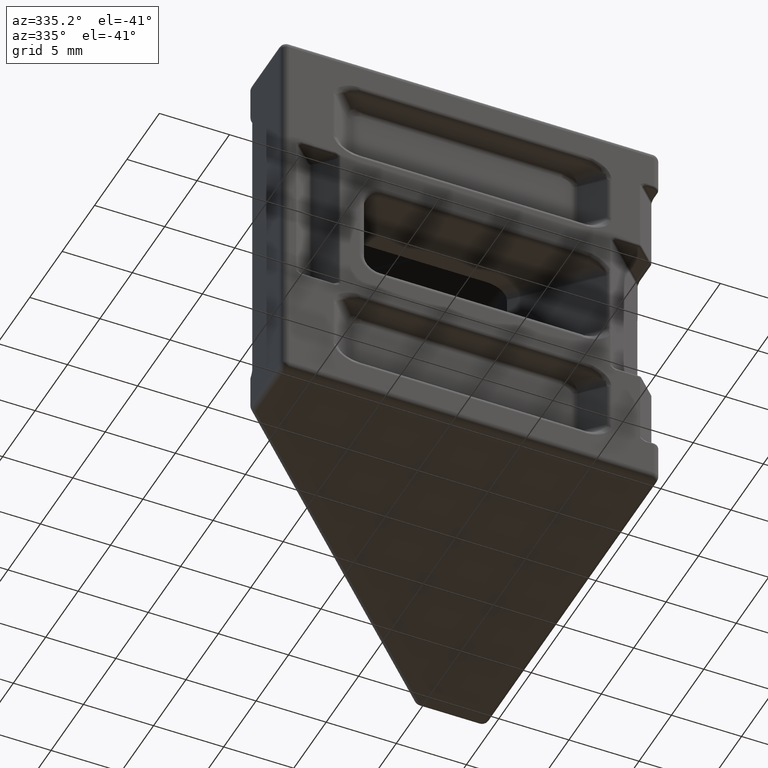
[diagram: clean part render]
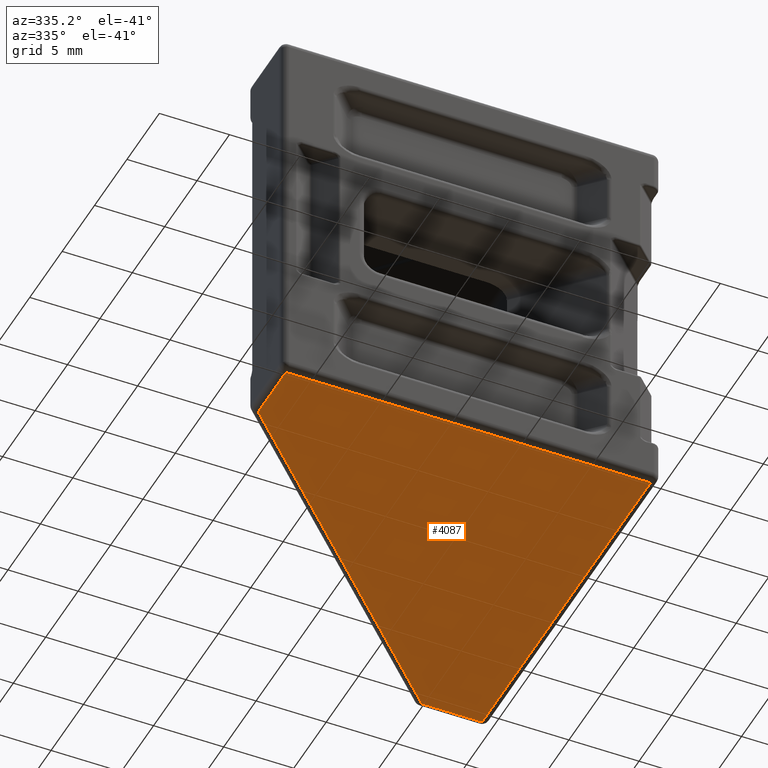
[diagram: same view with one face highlighted and labeled with its STEP entity id]
A machine part, auxiliary view. The second image highlights one B-rep face of the part: STEP entity #4087.
In plain terms, the highlighted planar face has unit normal (0, 0, -1).
Its self-contained STEP definition (entity closure, byte-faithful):
#269 = CARTESIAN_POINT ( 'NONE',  ( -26.99999999999999300, 0.4999999999999967800, -14.00000000000000000 ) ) ;
#271 = VECTOR ( 'NONE', #2605, 1000.000000000000000 ) ;
#309 = EDGE_CURVE ( 'NONE', #3029, #6449, #9121, .T. ) ;
#409 = CARTESIAN_POINT ( 'NONE',  ( -26.49999999999999300, 0.4999999999999968900, -14.00000000000000000 ) ) ;
#603 = EDGE_CURVE ( 'NONE', #8818, #2228, #4094, .T. ) ;
#654 = LINE ( 'NONE', #4162, #271 ) ;
#2131 = AXIS2_PLACEMENT_3D ( 'NONE', #6411, #4134, #9685 ) ;
#2228 = VERTEX_POINT ( 'NONE', #2753 ) ;
#2266 = ORIENTED_EDGE ( 'NONE', *, *, #309, .T. ) ;
#2388 = DIRECTION ( 'NONE',  ( 3.212450881438531700E-017, -1.000000000000000000, -0.0000000000000000000 ) ) ;
#2484 = CARTESIAN_POINT ( 'NONE',  ( -8.673617379884035500E-016, 26.50000000000000000, -14.00000000000000000 ) ) ;
#2605 = DIRECTION ( 'NONE',  ( -0.0000000000000000000, 1.000000000000000000, -0.0000000000000000000 ) ) ;
#2753 = CARTESIAN_POINT ( 'NONE',  ( -0.5000000000000008900, 26.50000000000000000, -14.00000000000000000 ) ) ;
#2755 = LINE ( 'NONE', #7195, #8048 ) ;
#3029 = VERTEX_POINT ( 'NONE', #4518 ) ;
#3226 = FACE_OUTER_BOUND ( 'NONE', #6805, .T. ) ;
#3519 = DIRECTION ( 'NONE',  ( -1.000000000000000000, -1.224646799147353000E-016, -0.0000000000000000000 ) ) ;
#3634 = EDGE_CURVE ( 'NONE', #2228, #3029, #7544, .T. ) ;
#3765 = VERTEX_POINT ( 'NONE', #7427 ) ;
#4044 = CARTESIAN_POINT ( 'NONE',  ( -0.5000000000000000000, 0.0000000000000000000, -14.00000000000000000 ) ) ;
#4087 = ADVANCED_FACE ( 'NONE', ( #3226 ), #4102, .T. ) ;
#4094 = LINE ( 'NONE', #2484, #6471 ) ;
#4102 = PLANE ( 'NONE',  #2131 ) ;
#4134 = DIRECTION ( 'NONE',  ( 0.0000000000000000000, 0.0000000000000000000, -1.000000000000000000 ) ) ;
#4162 = CARTESIAN_POINT ( 'NONE',  ( -26.49999999999999300, 4.999999999999996400, -14.00000000000000000 ) ) ;
#4518 = CARTESIAN_POINT ( 'NONE',  ( -0.5000000000000000000, 0.5000000000000000000, -14.00000000000000000 ) ) ;
#4840 = ORIENTED_EDGE ( 'NONE', *, *, #603, .T. ) ;
#4949 = EDGE_CURVE ( 'NONE', #6449, #3765, #654, .T. ) ;
#6411 = CARTESIAN_POINT ( 'NONE',  ( 0.0000000000000000000, 0.0000000000000000000, -14.00000000000000000 ) ) ;
#6449 = VERTEX_POINT ( 'NONE', #409 ) ;
#6471 = VECTOR ( 'NONE', #9724, 1000.000000000000000 ) ;
#6805 = EDGE_LOOP ( 'NONE', ( #7762, #8671, #4840, #7350, #2266 ) ) ;
#7195 = CARTESIAN_POINT ( 'NONE',  ( -4.646446609406725200, 26.64644660940673000, -14.00000000000000000 ) ) ;
#7350 = ORIENTED_EDGE ( 'NONE', *, *, #3634, .T. ) ;
#7417 = VECTOR ( 'NONE', #2388, 1000.000000000000000 ) ;
#7427 = CARTESIAN_POINT ( 'NONE',  ( -26.49999999999999300, 4.792893218813449400, -14.00000000000000000 ) ) ;
#7544 = LINE ( 'NONE', #4044, #7417 ) ;
#7762 = ORIENTED_EDGE ( 'NONE', *, *, #4949, .T. ) ;
#7984 = CARTESIAN_POINT ( 'NONE',  ( -4.792893218813456500, 26.50000000000000000, -14.00000000000000000 ) ) ;
#8048 = VECTOR ( 'NONE', #9740, 1000.000000000000000 ) ;
#8375 = EDGE_CURVE ( 'NONE', #3765, #8818, #2755, .T. ) ;
#8671 = ORIENTED_EDGE ( 'NONE', *, *, #8375, .T. ) ;
#8818 = VERTEX_POINT ( 'NONE', #7984 ) ;
#8860 = VECTOR ( 'NONE', #3519, 1000.000000000000000 ) ;
#9121 = LINE ( 'NONE', #269, #8860 ) ;
#9685 = DIRECTION ( 'NONE',  ( -1.000000000000000000, 0.0000000000000000000, -0.0000000000000000000 ) ) ;
#9724 = DIRECTION ( 'NONE',  ( 1.000000000000000000, -0.0000000000000000000, -0.0000000000000000000 ) ) ;
#9740 = DIRECTION ( 'NONE',  ( 0.7071067811865473500, 0.7071067811865477900, -0.0000000000000000000 ) ) ;